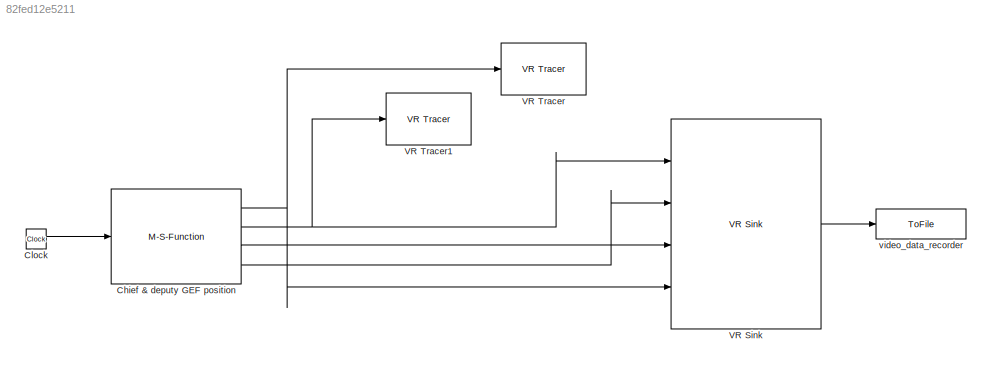
MODEL slx_82fed12e5211
KIND model
CONFIG AbsTol = auto
CONFIG FixedStep = 60
CONFIG MaxStep = 300
CONFIG MinStep = auto
CONFIG RelTol = 1e-3
CONFIG SampleTimeConstraint = Unconstrained
CONFIG Solver = VariableStepDiscrete
CONFIG SolverMode = Auto
CONFIG SolverName = VariableStepDiscrete
CONFIG StartTime = 0.0
CONFIG StopTime = 36e4
BLOCK [M-S-Function] Chief & deputy GEF position
  FunctionName = DiscGefPositionSFcn
  Parameters = ResAnalysis
  Ports = [1, 4]
BLOCK [Clock] Clock
BLOCK [Reference] VR Sink  REF=vrlib/VR Sink
  AllowVariableSize = off
  AutoView = off
  FieldsWritten = Deputy.translation#DeputyInitPos.translation#ChiefInitPos.translation#Chief.translation
  FigureProperties = {'Position', 'Name', 'Viewpoint', 'CameraBound', 'CameraDirection', 'CameraPosition', 'CameraUpVector', 'ZoomFactor', 'Antialiasing', 'Headlight', 'Lighting', 'NavPanel', 'StatusBar', 'ToolBar', 'Textures', 'Transparency', 'Triad', 'Wireframe', 'NavZones', 'NavMode', 'NavSpeed', 'CaptureFileFormat', 'CaptureFileName', 'Record2DCompressMethod', 'Record2DCompressQuality', 'Record2D', 'Record2DFileNa...<+576ch>
  InstantiateOnLoad = on
  Ports = [4, 1]
  RemoteChange = off
  RemoteView = off
  SampleTime = -1
  SourceBlock = vrlib/VR Sink
  SourceType = Virtual Reality Sink
  VideoDimensions = [640 960]
  ViewEnable = on
  WorldFileName = orbits.wrl
BLOCK [Reference] VR Tracer  REF=vrlib/VR Tracer
  ConnectPlane = off
  ConnectPoint = None
  ForceViewerOpen = off
  MarkerColor = red
  MarkerColorSelection = Defined as RGB values
  MarkerName = None
  MarkerScale = [1 1 1]
  PlaneCoeff = [0 1 0 0]
  PointCoord = [0 0 0]
  Ports = [1]
  SourceBlock = vrlib/VR Tracer
  SourceType = VR Tracer
  Ts = -1
  UseLines = on
  UseTriads = off
  VrmlFile = orbits.wrl
  rgbval = [0.5 0 0]
BLOCK [Reference] VR Tracer1  REF=vrlib/VR Tracer
  ConnectPlane = off
  ConnectPoint = None
  ForceViewerOpen = off
  MarkerColor = red
  MarkerColorSelection = Defined as RGB values
  MarkerName = None
  MarkerScale = [1 1 1]
  PlaneCoeff = [0 1 0 0]
  PointCoord = [0 0 0]
  Ports = [1]
  SourceBlock = vrlib/VR Tracer
  SourceType = VR Tracer
  Ts = -1
  UseLines = on
  UseTriads = off
  VrmlFile = orbits.wrl
  rgbval = [0 0.5 0]
BLOCK [ToFile] video_data_recorder
  AttributesFormatString = %<SampleTime>
  Filename = video_data.mat
  MatrixName = video_data
  Ports = [1]
  SampleTime = 1200
  SaveFormat = Timeseries
NET Chief & deputy GEF position:1 -> VR Sink:4, VR Tracer:1
NET Chief & deputy GEF position:2 -> VR Sink:1, VR Tracer1:1
LINE Chief & deputy GEF position:3 -> VR Sink:3
LINE Chief & deputy GEF position:4 -> VR Sink:2
LINE Clock:1 -> Chief & deputy GEF position:1
LINE VR Sink:1 -> video_data_recorder:1
note: NET lines group one-source signal fan-out (src -> all destinations, sorted); 1:1 wires keep LINE
